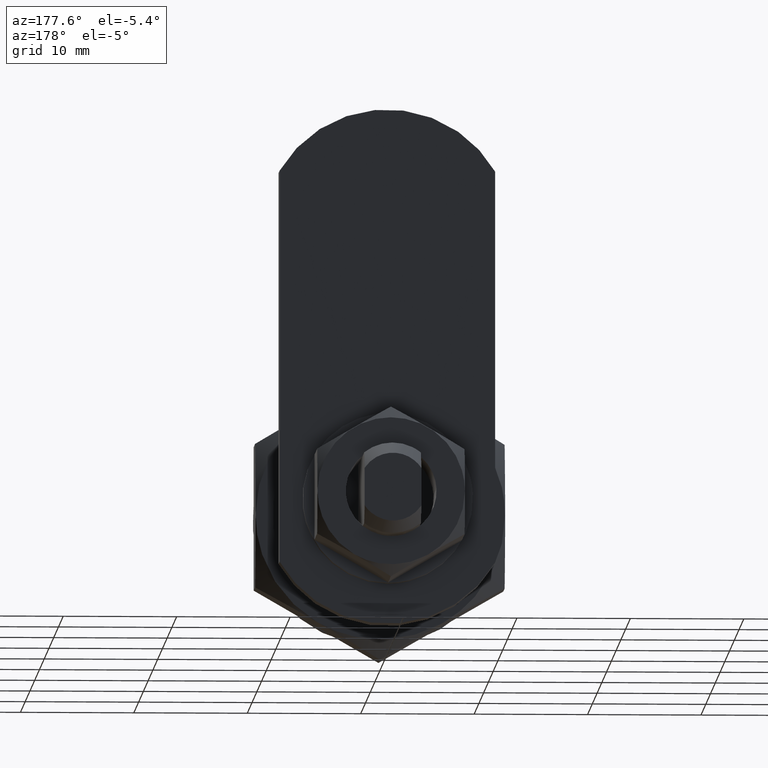
[diagram: clean part render]
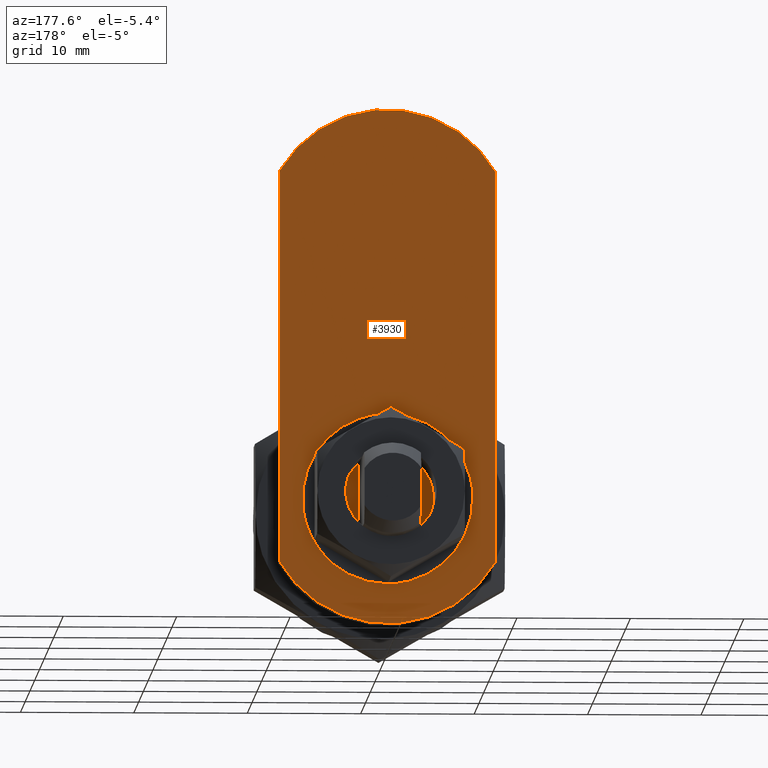
[diagram: same view with one face highlighted and labeled with its STEP entity id]
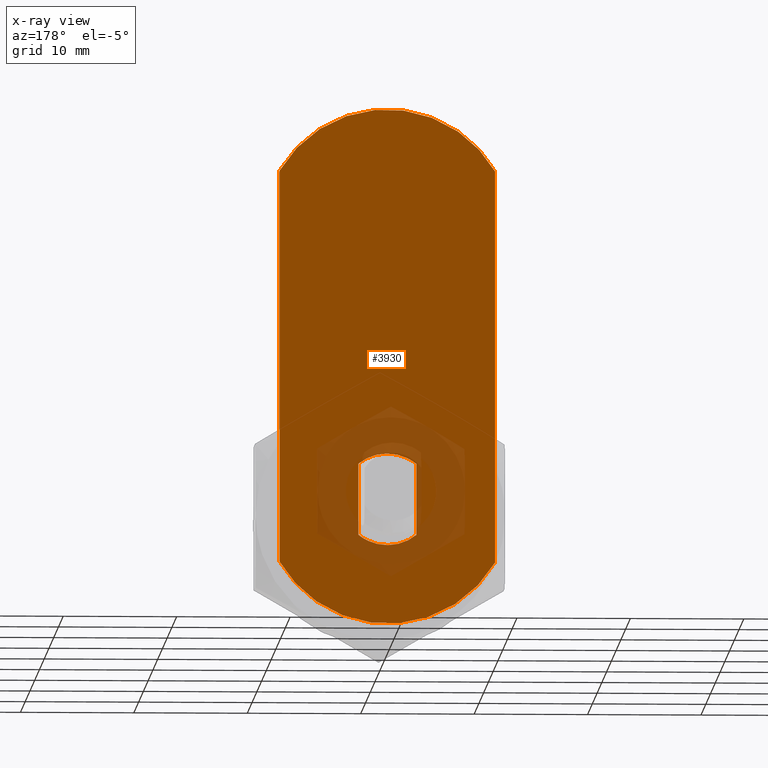
[diagram: x-ray of the same camera — body ghosted, the highlighted face saturated]
A machine part, auxiliary view. The second image highlights one B-rep face of the part: STEP entity #3930.
The next image is the same camera in x-ray: the body ghosted, the highlighted face saturated — about 13% of this face is hidden behind the body in this view.
In plain terms, the highlighted face is a freeform B-spline surface patch.
Its self-contained STEP definition (entity closure, byte-faithful):
#3829=CARTESIAN_POINT('',(-10.449050162923021,26.0,36.772724911811522));
#3830=CARTESIAN_POINT('',(10.449054671516190,26.0,36.772724911811522));
#3831=CARTESIAN_POINT('',(-10.449050162923021,26.0,-13.272726132217359));
#3832=CARTESIAN_POINT('',(10.449054671516190,26.0,-13.272726132217359));
#3833=B_SPLINE_SURFACE_WITH_KNOTS('',1,1,((#3829,#3831),(#3830,#3832)),.UNSPECIFIED.,.F.,.F.,.U.,(2,2),(2,2),(0.0,20.898104834439220),(0.0,50.045451044028880),.UNSPECIFIED.);
#3834=CARTESIAN_POINT('',(9.500000000000000,26.0,-5.545268253204820));
#3835=VERTEX_POINT('',#3834);
#3836=CARTESIAN_POINT('',(9.500003998973350,26.0,29.045261402268501));
#3837=VERTEX_POINT('',#3836);
#3838=CARTESIAN_POINT('',(9.500000000000000,26.0,-5.545268253204820));
#3839=CARTESIAN_POINT('',(9.500003998973350,26.0,29.045261402268501));
#3840=QUASI_UNIFORM_CURVE('',1,(#3838,#3839),.UNSPECIFIED.,.F.,.U.);
#3841=EDGE_CURVE('',#3835,#3837,#3840,.T.);
#3842=ORIENTED_EDGE('',*,*,#3841,.F.);
#3843=CARTESIAN_POINT('',(-9.500000000000000,26.0,-5.545268253204790));
#3844=VERTEX_POINT('',#3843);
#3845=CARTESIAN_POINT('',(-9.500000000000014,26.0,-5.545268253204804));
#3846=CARTESIAN_POINT('',(-6.316005180499828,25.999999999999996,-11.000000000000115));
#3847=CARTESIAN_POINT('',(-3.552714E-015,26.0,-11.000000000000110));
#3848=CARTESIAN_POINT('',(6.316005180499806,25.999999999999996,-11.000000000000115));
#3849=CARTESIAN_POINT('',(9.499999999999995,26.0,-5.545268253204823));
#3857=(BOUNDED_CURVE()B_SPLINE_CURVE(2,(#3845,#3846,#3847,#3848,#3849),.UNSPECIFIED.,.F.,.U.)B_SPLINE_CURVE_WITH_KNOTS((3,2,3),(0.0,0.500000000000000,1.0),.UNSPECIFIED.)CURVE()GEOMETRIC_REPRESENTATION_ITEM()RATIONAL_B_SPLINE_CURVE((1.0,0.867212573636326,1.0,0.867212573636326,1.0))REPRESENTATION_ITEM(''));
#3858=EDGE_CURVE('',#3844,#3835,#3857,.T.);
#3859=ORIENTED_EDGE('',*,*,#3858,.F.);
#3860=CARTESIAN_POINT('',(-9.500000000000000,26.0,29.045268253204551));
#3861=VERTEX_POINT('',#3860);
#3862=CARTESIAN_POINT('',(-9.500000000000000,26.0,29.045268253204551));
#3863=CARTESIAN_POINT('',(-9.500000000000000,26.0,-5.545268253204790));
#3864=QUASI_UNIFORM_CURVE('',1,(#3862,#3863),.UNSPECIFIED.,.F.,.U.);
#3865=EDGE_CURVE('',#3861,#3844,#3864,.T.);
#3866=ORIENTED_EDGE('',*,*,#3865,.F.);
#3867=CARTESIAN_POINT('',(9.500003998973350,26.0,29.045261402268501));
#3868=CARTESIAN_POINT('',(6.316011783816053,25.999999999999993,34.499997722601563));
#3869=CARTESIAN_POINT('',(0.000003966330559,26.0,34.499999999999282));
#3870=CARTESIAN_POINT('',(-6.316003851154928,25.999999999999993,34.500002277396995));
#3871=CARTESIAN_POINT('',(-9.500000000000000,26.0,29.045268253204551));
#3879=(BOUNDED_CURVE()B_SPLINE_CURVE(2,(#3867,#3868,#3869,#3870,#3871),.UNSPECIFIED.,.F.,.U.)B_SPLINE_CURVE_WITH_KNOTS((3,2,3),(0.0,0.500000000000000,1.0),.UNSPECIFIED.)CURVE()GEOMETRIC_REPRESENTATION_ITEM()RATIONAL_B_SPLINE_CURVE((1.0,0.867212483864168,1.0,0.867212483864168,1.0))REPRESENTATION_ITEM(''));
#3880=EDGE_CURVE('',#3837,#3861,#3879,.T.);
#3881=ORIENTED_EDGE('',*,*,#3880,.F.);
#3882=EDGE_LOOP('',(#3842,#3859,#3866,#3881));
#3883=FACE_OUTER_BOUND('',#3882,.T.);
#3884=CARTESIAN_POINT('',(2.550000000000000,26.0,3.146426544510340));
#3885=VERTEX_POINT('',#3884);
#3886=CARTESIAN_POINT('',(-2.550000000000000,26.0,3.146426544510340));
#3887=VERTEX_POINT('',#3886);
#3888=CARTESIAN_POINT('',(2.550000000000001,26.0,3.146426544510337));
#3889=CARTESIAN_POINT('',(2.952499E-015,26.0,5.213056706700163));
#3890=CARTESIAN_POINT('',(-2.550000000000001,26.0,3.146426544510343));
#3898=(BOUNDED_CURVE()B_SPLINE_CURVE(2,(#3888,#3889,#3890),.UNSPECIFIED.,.F.,.U.)CURVE()GEOMETRIC_REPRESENTATION_ITEM()QUASI_UNIFORM_CURVE()RATIONAL_B_SPLINE_CURVE((1.0,0.776895443089001,1.0))REPRESENTATION_ITEM(''));
#3899=EDGE_CURVE('',#3885,#3887,#3898,.T.);
#3900=ORIENTED_EDGE('',*,*,#3899,.T.);
#3901=CARTESIAN_POINT('',(-2.550000000000000,26.0,-3.146426544510570));
#3902=VERTEX_POINT('',#3901);
#3903=CARTESIAN_POINT('',(-2.550000000000000,26.0,3.146426544510340));
#3904=CARTESIAN_POINT('',(-2.550000000000000,26.0,-3.146426544510570));
#3905=QUASI_UNIFORM_CURVE('',1,(#3903,#3904),.UNSPECIFIED.,.F.,.U.);
#3906=EDGE_CURVE('',#3887,#3902,#3905,.T.);
#3907=ORIENTED_EDGE('',*,*,#3906,.T.);
#3908=CARTESIAN_POINT('',(2.550000000000000,26.0,-3.146426544510570));
#3909=VERTEX_POINT('',#3908);
#3910=CARTESIAN_POINT('',(-2.550000000000000,26.0,-3.146426544510570));
#3911=CARTESIAN_POINT('',(-5.169476E-016,26.000000000000007,-5.213056706700387));
#3912=CARTESIAN_POINT('',(2.549999999999997,26.0,-3.146426544510568));
#3920=(BOUNDED_CURVE()B_SPLINE_CURVE(2,(#3910,#3911,#3912),.UNSPECIFIED.,.F.,.U.)CURVE()GEOMETRIC_REPRESENTATION_ITEM()QUASI_UNIFORM_CURVE()RATIONAL_B_SPLINE_CURVE((1.0,0.776895443089001,1.0))REPRESENTATION_ITEM(''));
#3921=EDGE_CURVE('',#3902,#3909,#3920,.T.);
#3922=ORIENTED_EDGE('',*,*,#3921,.T.);
#3923=CARTESIAN_POINT('',(2.550000000000000,26.0,-3.146426544510570));
#3924=CARTESIAN_POINT('',(2.550000000000000,26.0,3.146426544510340));
#3925=QUASI_UNIFORM_CURVE('',1,(#3923,#3924),.UNSPECIFIED.,.F.,.U.);
#3926=EDGE_CURVE('',#3909,#3885,#3925,.T.);
#3927=ORIENTED_EDGE('',*,*,#3926,.T.);
#3928=EDGE_LOOP('',(#3900,#3907,#3922,#3927));
#3929=FACE_BOUND('',#3928,.T.);
#3930=ADVANCED_FACE('',(#3883,#3929),#3833,.T.);